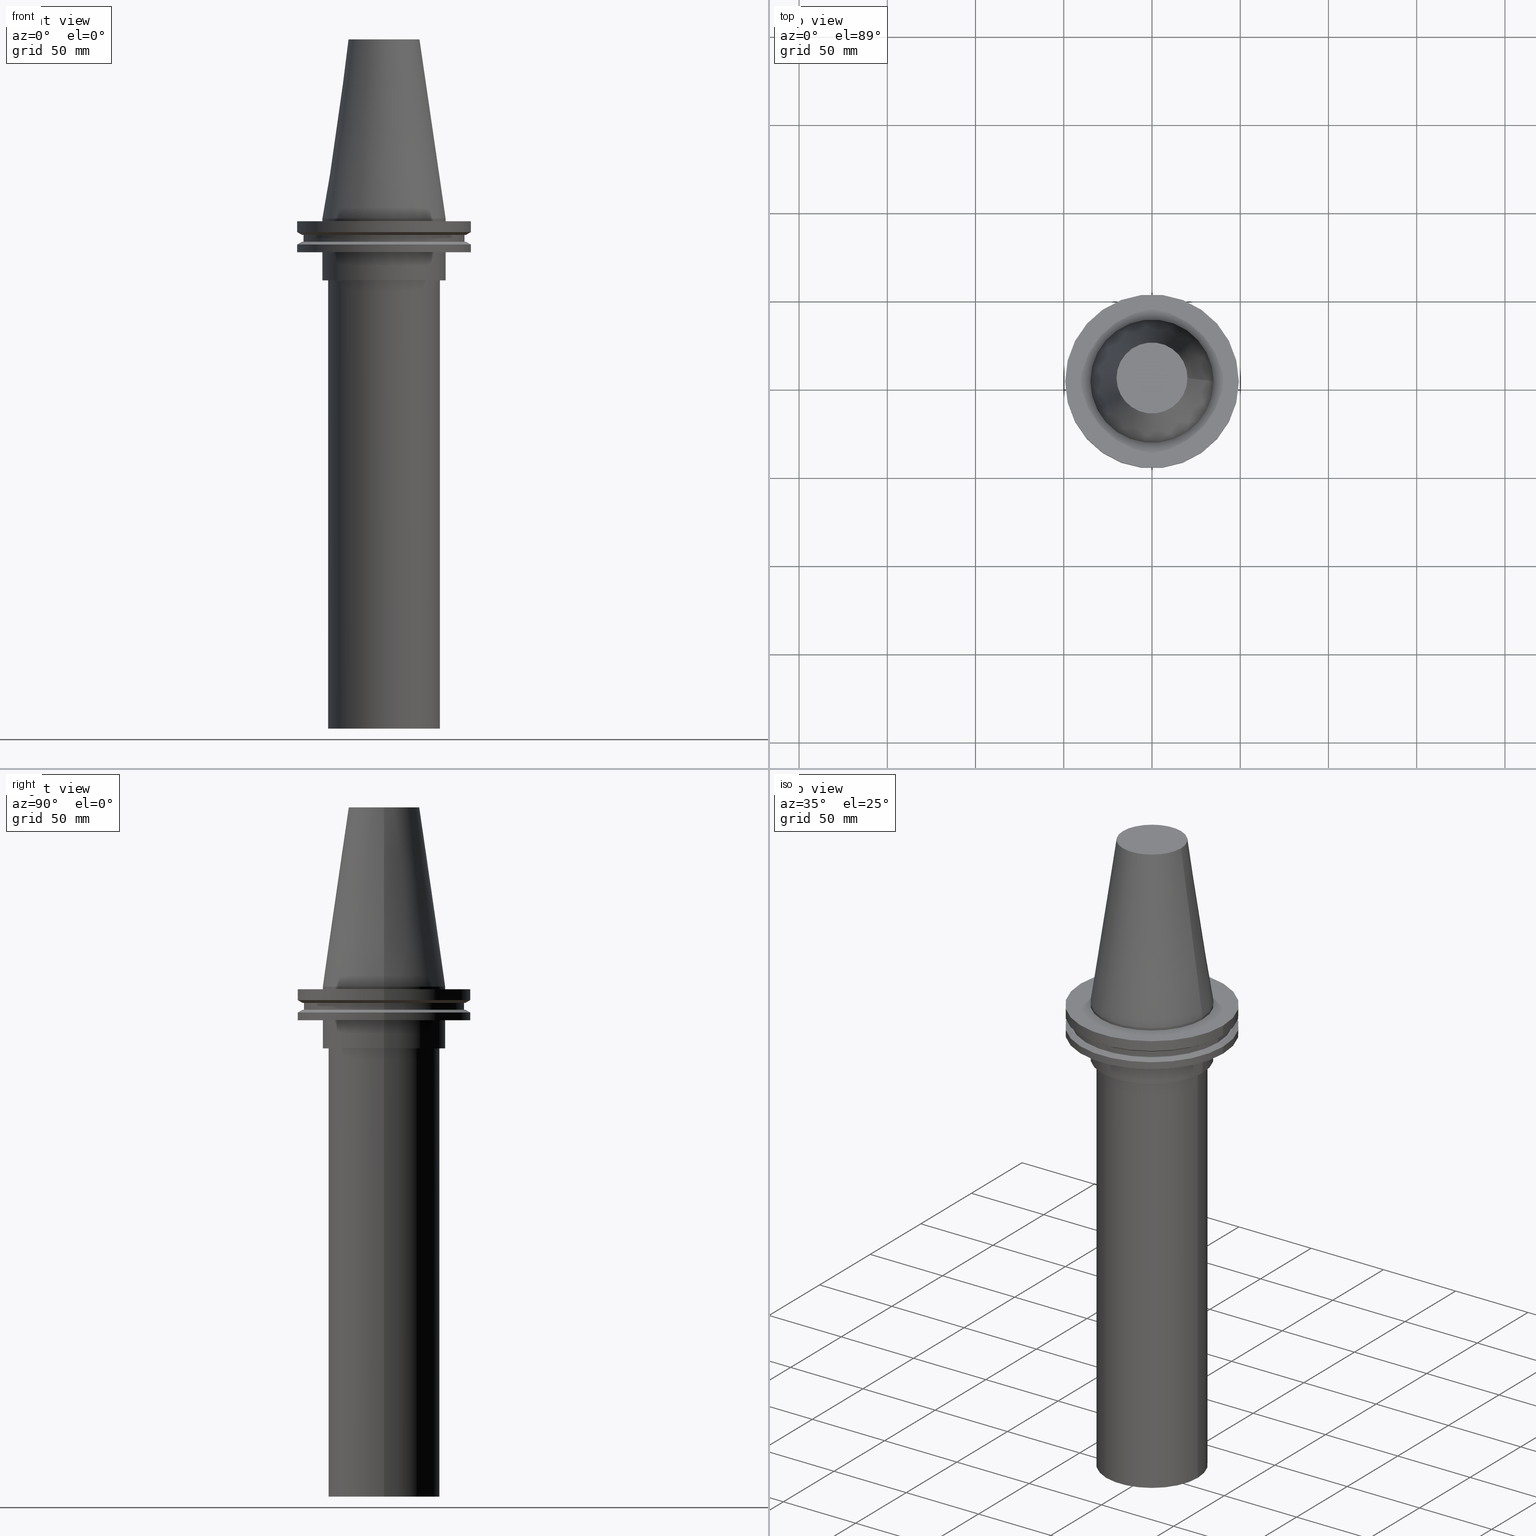
[diagram: canonical four-view strip — front | top / right | iso, engineering-drawing reading convention]
A machine part, canonical four-view strip (front | top / right | iso — engineering-drawing reading convention). The complete STEP part file that produces these views, byte-faithful:
ISO-10303-21;
HEADER;
FILE_DESCRIPTION (( 'STEP AP203' ),
    '1' );
FILE_NAME ('11.326.667.stp',
    '2022-03-09T14:54:25',
    ( '' ),
    ( '' ),
    'SwSTEP 2.0',
    'SolidWorks 2021',
    '' );
FILE_SCHEMA (( 'CONFIG_CONTROL_DESIGN' ));
ENDSEC;

DATA;
#1 = PERSON_AND_ORGANIZATION ( #78, #161 ) ;
#2 = ORIENTED_EDGE ( 'NONE', *, *, #365, .T. ) ;
#3 = EDGE_CURVE ( 'NONE', #98, #98, #148, .T. ) ;
#4 = CARTESIAN_POINT ( 'NONE',  ( 0.000000000000000000, 0.000000000000000000, 101.5999999999999943 ) ) ;
#5 = AXIS2_PLACEMENT_3D ( 'NONE', #248, #250, #370 ) ;
#6 = AXIS2_PLACEMENT_3D ( 'NONE', #90, #182, #334 ) ;
#7 = EDGE_LOOP ( 'NONE', ( #206 ) ) ;
#8 = DIRECTION ( 'NONE',  ( 0.000000000000000000, -0.000000000000000000, 1.000000000000000000 ) ) ;
#9 = EDGE_LOOP ( 'NONE', ( #40 ) ) ;
#10 = CARTESIAN_POINT ( 'NONE',  ( 0.000000000000000000, 0.000000000000000000, 101.5999999999999801 ) ) ;
#11 = EDGE_LOOP ( 'NONE', ( #306 ) ) ;
#12 = CARTESIAN_POINT ( 'NONE',  ( 0.000000000000000000, 49.21499999999998920, -19.04999999999999716 ) ) ;
#13 = DIRECTION ( 'NONE',  ( 1.000000000000000000, 0.000000000000000000, 0.000000000000000000 ) ) ;
#14 = VERTEX_POINT ( 'NONE', #19 ) ;
#15 = CARTESIAN_POINT ( 'NONE',  ( 49.21499999999998920, 0.000000000000000000, -14.65761014474876944 ) ) ;
#16 = EDGE_CURVE ( 'NONE', #378, #378, #138, .T. ) ;
#17 = CC_DESIGN_APPROVAL ( #258, ( #376 ) ) ;
#18 = CIRCLE ( 'NONE', #288, 45.64500000000000313 ) ;
#19 = CARTESIAN_POINT ( 'NONE',  ( 49.21499999999999631, 0.000000000000000000, -1.499999999999987566 ) ) ;
#20 = ADVANCED_FACE ( 'NONE', ( #44, #163 ), #72, .T. ) ;
#21 = CARTESIAN_POINT ( 'NONE',  ( 0.000000000000000000, 0.000000000000000000, 0.000000000000000000 ) ) ;
#22 = APPROVAL_ROLE ( '' ) ;
#23 = CIRCLE ( 'NONE', #348, 34.92499999999999716 ) ;
#24 = CARTESIAN_POINT ( 'NONE',  ( 0.000000000000000000, 45.64500000000000313, -13.05499999999999794 ) ) ;
#25 = EDGE_CURVE ( 'NONE', #320, #320, #141, .T. ) ;
#26 = CARTESIAN_POINT ( 'NONE',  ( 0.000000000000000000, 49.21499999999999631, -1.499999999999992895 ) ) ;
#27 = PRODUCT_DEFINITION_SHAPE ( 'NONE', 'NONE',  #54 ) ;
#28 = DIRECTION ( 'NONE',  ( -1.000000000000000000, 0.000000000000000000, -0.000000000000000000 ) ) ;
#29 = ADVANCED_BREP_SHAPE_REPRESENTATION ( '11.326.667', ( #239, #56 ), #170 ) ;
#30 = FACE_OUTER_BOUND ( 'NONE', #89, .T. ) ;
#31 = PERSON_AND_ORGANIZATION_ROLE ( 'classification_officer' ) ;
#32 = EDGE_LOOP ( 'NONE', ( #35 ) ) ;
#33 = DIRECTION ( 'NONE',  ( 1.000000000000000000, 0.000000000000000000, 0.000000000000000000 ) ) ;
#34 = CALENDAR_DATE ( 2022, 9, 3 ) ;
#35 = ORIENTED_EDGE ( 'NONE', *, *, #279, .F. ) ;
#36 = DIRECTION ( 'NONE',  ( 1.000000000000000000, 0.000000000000000000, 0.000000000000000000 ) ) ;
#37 = AXIS2_PLACEMENT_3D ( 'NONE', #12, #127, #100 ) ;
#38 = EDGE_LOOP ( 'NONE', ( #210 ) ) ;
#39 = DIRECTION ( 'NONE',  ( -0.000000000000000000, -0.000000000000000000, 1.000000000000000000 ) ) ;
#40 = ORIENTED_EDGE ( 'NONE', *, *, #165, .T. ) ;
#41 = FACE_OUTER_BOUND ( 'NONE', #326, .T. ) ;
#42 = ADVANCED_FACE ( 'NONE', ( #30, #268 ), #373, .T. ) ;
#43 = DIRECTION ( 'NONE',  ( -0.000000000000000000, -0.000000000000000000, 1.000000000000000000 ) ) ;
#44 = FACE_OUTER_BOUND ( 'NONE', #38, .T. ) ;
#45 = VERTEX_POINT ( 'NONE', #255 ) ;
#46 = CARTESIAN_POINT ( 'NONE',  ( 34.92499999999999005, 0.000000000000000000, 0.000000000000000000 ) ) ;
#47 = CIRCLE ( 'NONE', #116, 34.92499999999999005 ) ;
#48 = ADVANCED_FACE ( 'NONE', ( #315, #113 ), #176, .T. ) ;
#49 = FACE_BOUND ( 'NONE', #32, .T. ) ;
#50 = CIRCLE ( 'NONE', #6, 49.21499999999999631 ) ;
#51 = FACE_BOUND ( 'NONE', #335, .T. ) ;
#52 = EDGE_CURVE ( 'NONE', #75, #75, #23, .T. ) ;
#53 = DIRECTION ( 'NONE',  ( 1.000000000000000000, 0.000000000000000000, 0.000000000000000000 ) ) ;
#54 = PRODUCT_DEFINITION ( 'UNKNOWN', '', #376, #352 ) ;
#55 = CARTESIAN_POINT ( 'NONE',  ( 0.000000000000000000, 0.000000000000000000, -35.00000000000000000 ) ) ;
#56 = AXIS2_PLACEMENT_3D ( 'NONE', #196, #345, #287 ) ;
#57 = CARTESIAN_POINT ( 'NONE',  ( 0.000000000000000000, 0.000000000000000000, -9.204999999999991189 ) ) ;
#58 = CLOSED_SHELL ( 'NONE', ( #96, #230, #95, #20, #314, #343, #109, #66, #203, #139, #42, #48, #81, #316, #260, #347 ) ) ;
#59 = EDGE_LOOP ( 'NONE', ( #99 ) ) ;
#60 = FACE_OUTER_BOUND ( 'NONE', #11, .T. ) ;
#61 = ORIENTED_EDGE ( 'NONE', *, *, #25, .T. ) ;
#62 = DIRECTION ( 'NONE',  ( -0.000000000000000000, -0.000000000000000000, 1.000000000000000000 ) ) ;
#63 = ORIENTED_EDGE ( 'NONE', *, *, #277, .T. ) ;
#64 = DIRECTION ( 'NONE',  ( -0.000000000000000000, -0.000000000000000000, 1.000000000000000000 ) ) ;
#65 = AXIS2_PLACEMENT_3D ( 'NONE', #245, #43, #269 ) ;
#66 = ADVANCED_FACE ( 'NONE', ( #385, #387 ), #292, .F. ) ;
#67 = ORIENTED_EDGE ( 'NONE', *, *, #16, .F. ) ;
#68 = CARTESIAN_POINT ( 'NONE',  ( 31.63500000000000512, 0.000000000000000000, -288.9999999999999432 ) ) ;
#69 = ORIENTED_EDGE ( 'NONE', *, *, #365, .F. ) ;
#70 = APPROVAL ( #272, 'UNSPECIFIED' ) ;
#71 = DIRECTION ( 'NONE',  ( -0.000000000000000000, -0.000000000000000000, 1.000000000000000000 ) ) ;
#72 = CYLINDRICAL_SURFACE ( 'NONE', #235, 34.92499999999999716 ) ;
#73 = PERSON_AND_ORGANIZATION ( #78, #161 ) ;
#74 = APPROVAL_PERSON_ORGANIZATION ( #291, #319, #22 ) ;
#75 = VERTEX_POINT ( 'NONE', #195 ) ;
#76 = SECURITY_CLASSIFICATION ( '', '', #366 ) ;
#77 = AXIS2_PLACEMENT_3D ( 'NONE', #197, #143, #296 ) ;
#78 = PERSON ( 'UNSPECIFIED', 'UNSPECIFIED', 'UNSPECIFIED', ('UNSPECIFIED'), ('UNSPECIFIED'), ('UNSPECIFIED') ) ;
#79 = PLANE ( 'NONE',  #223 ) ;
#80 = CARTESIAN_POINT ( 'NONE',  ( 0.000000000000000000, 0.000000000000000000, 101.5999999999999943 ) ) ;
#81 = ADVANCED_FACE ( 'NONE', ( #350, #112 ), #266, .F. ) ;
#82 = APPROVAL_DATE_TIME ( #114, #319 ) ;
#83 = AXIS2_PLACEMENT_3D ( 'NONE', #349, #207, #211 ) ;
#84 = AXIS2_PLACEMENT_3D ( 'NONE', #395, #372, #157 ) ;
#85 = CARTESIAN_POINT ( 'NONE',  ( 0.000000000000000000, 0.000000000000000000, -14.65761014474876944 ) ) ;
#86 = CIRCLE ( 'NONE', #338, 49.21499999999998920 ) ;
#87 = CARTESIAN_POINT ( 'NONE',  ( 0.000000000000000000, 0.000000000000000000, -14.65761014474876944 ) ) ;
#88 = FACE_OUTER_BOUND ( 'NONE', #7, .T. ) ;
#89 = EDGE_LOOP ( 'NONE', ( #300 ) ) ;
#90 = CARTESIAN_POINT ( 'NONE',  ( 0.000000000000000000, 0.000000000000000000, -1.499999999999987566 ) ) ;
#91 = ORIENTED_EDGE ( 'NONE', *, *, #232, .F. ) ;
#92 = CARTESIAN_POINT ( 'NONE',  ( 0.000000000000000000, 31.63500000000000512, -289.0000000000000568 ) ) ;
#93 = EDGE_LOOP ( 'NONE', ( #124 ) ) ;
#94 = CARTESIAN_POINT ( 'NONE',  ( 0.000000000000000000, 20.10819343178871321, 101.5999999999999943 ) ) ;
#95 = ADVANCED_FACE ( 'NONE', ( #393, #115 ), #79, .F. ) ;
#96 = ADVANCED_FACE ( 'NONE', ( #49, #391 ), #155, .T. ) ;
#97 = EDGE_LOOP ( 'NONE', ( #2 ) ) ;
#98 = VERTEX_POINT ( 'NONE', #68 ) ;
#99 = ORIENTED_EDGE ( 'NONE', *, *, #52, .T. ) ;
#100 = DIRECTION ( 'NONE',  ( 1.000000000000000000, 0.000000000000000000, 0.000000000000000000 ) ) ;
#101 = DIRECTION ( 'NONE',  ( -0.000000000000000000, -0.000000000000000000, 1.000000000000000000 ) ) ;
#102 = PERSON_AND_ORGANIZATION ( #78, #161 ) ;
#103 = VERTEX_POINT ( 'NONE', #386 ) ;
#104 = CC_DESIGN_APPROVAL ( #319, ( #54 ) ) ;
#105 = CIRCLE ( 'NONE', #377, 20.10819343178871321 ) ;
#106 = VERTEX_POINT ( 'NONE', #15 ) ;
#107 = CIRCLE ( 'NONE', #354, 31.63500000000000512 ) ;
#108 = CARTESIAN_POINT ( 'NONE',  ( 31.63500000000000512, 0.000000000000000000, -35.00000000000000000 ) ) ;
#109 = ADVANCED_FACE ( 'NONE', ( #289, #199 ), #275, .T. ) ;
#110 = CC_DESIGN_APPROVAL ( #70, ( #76 ) ) ;
#111 = AXIS2_PLACEMENT_3D ( 'NONE', #94, #327, #129 ) ;
#112 = FACE_OUTER_BOUND ( 'NONE', #280, .T. ) ;
#113 = FACE_OUTER_BOUND ( 'NONE', #369, .T. ) ;
#114 = DATE_AND_TIME ( #262, #241 ) ;
#115 = FACE_OUTER_BOUND ( 'NONE', #185, .T. ) ;
#116 = AXIS2_PLACEMENT_3D ( 'NONE', #214, #188, #332 ) ;
#117 = DATE_AND_TIME ( #295, #267 ) ;
#118 = CARTESIAN_POINT ( 'NONE',  ( 0.000000000000000000, 46.43919780457007818, -9.204999999999998295 ) ) ;
#119 = DIRECTION ( 'NONE',  ( -0.000000000000000000, -0.000000000000000000, 1.000000000000000000 ) ) ;
#120 = APPROVAL_ROLE ( '' ) ;
#121 = ORIENTED_EDGE ( 'NONE', *, *, #277, .F. ) ;
#122 = CYLINDRICAL_SURFACE ( 'NONE', #220, 34.92499999999999005 ) ;
#123 = APPROVAL_DATE_TIME ( #356, #70 ) ;
#124 = ORIENTED_EDGE ( 'NONE', *, *, #298, .F. ) ;
#125 = DATE_TIME_ROLE ( 'creation_date' ) ;
#126 = ORIENTED_EDGE ( 'NONE', *, *, #263, .F. ) ;
#127 = DIRECTION ( 'NONE',  ( 0.000000000000000000, -0.000000000000000000, 1.000000000000000000 ) ) ;
#128 = EDGE_LOOP ( 'NONE', ( #181 ) ) ;
#129 = DIRECTION ( 'NONE',  ( -1.000000000000000000, 0.000000000000000000, -0.000000000000000000 ) ) ;
#130 = CC_DESIGN_PERSON_AND_ORGANIZATION_ASSIGNMENT ( #1, #31, ( #76 ) ) ;
#131 = EDGE_LOOP ( 'NONE', ( #191 ) ) ;
#132 = PLANE ( 'NONE',  #111 ) ;
#133 = DIRECTION ( 'NONE',  ( 1.000000000000000000, 0.000000000000000000, 0.000000000000000000 ) ) ;
#134 = VERTEX_POINT ( 'NONE', #219 ) ;
#135 = CARTESIAN_POINT ( 'NONE',  ( 49.21500000000000341, 0.000000000000000000, -7.602389855251287187 ) ) ;
#136 = APPLICATION_PROTOCOL_DEFINITION ( 'international standard', 'config_control_design', 1994, #381 ) ;
#137 = CARTESIAN_POINT ( 'NONE',  ( 34.92499999999999005, 0.000000000000000000, -1.499999999999987566 ) ) ;
#138 = CIRCLE ( 'NONE', #285, 49.21499999999998920 ) ;
#139 = ADVANCED_FACE ( 'NONE', ( #140, #51 ), #201, .F. ) ;
#140 = FACE_OUTER_BOUND ( 'NONE', #333, .T. ) ;
#141 = CIRCLE ( 'NONE', #392, 45.64500000000000313 ) ;
#142 =( NAMED_UNIT ( * ) SI_UNIT ( $, .STERADIAN. ) SOLID_ANGLE_UNIT ( ) );
#143 = DIRECTION ( 'NONE',  ( -0.000000000000000000, -0.000000000000000000, 1.000000000000000000 ) ) ;
#144 = PERSON_AND_ORGANIZATION_ROLE ( 'creator' ) ;
#145 = CARTESIAN_POINT ( 'NONE',  ( 0.000000000000000000, 34.92499999999999716, -35.00000000000000000 ) ) ;
#146 = PERSON_AND_ORGANIZATION ( #78, #161 ) ;
#147 = DIRECTION ( 'NONE',  ( 1.000000000000000000, 0.000000000000000000, 0.000000000000000000 ) ) ;
#148 = CIRCLE ( 'NONE', #337, 31.63500000000000512 ) ;
#149 = DIRECTION ( 'NONE',  ( 0.000000000000000000, -0.000000000000000000, 1.000000000000000000 ) ) ;
#150 = EDGE_LOOP ( 'NONE', ( #126 ) ) ;
#151 = FACE_OUTER_BOUND ( 'NONE', #208, .T. ) ;
#152 = PERSON_AND_ORGANIZATION ( #78, #161 ) ;
#153 = ORIENTED_EDGE ( 'NONE', *, *, #263, .T. ) ;
#154 = FACE_BOUND ( 'NONE', #59, .T. ) ;
#155 = CONICAL_SURFACE ( 'NONE', #202, 34.92499999999999005, 0.1448138465474119452 ) ;
#156 = ORIENTED_EDGE ( 'NONE', *, *, #379, .T. ) ;
#157 = DIRECTION ( 'NONE',  ( 1.000000000000000000, 0.000000000000000000, 0.000000000000000000 ) ) ;
#158 = ORIENTED_EDGE ( 'NONE', *, *, #183, .T. ) ;
#159 = CARTESIAN_POINT ( 'NONE',  ( 0.000000000000000000, 0.000000000000000000, -13.05499999999999794 ) ) ;
#160 = VERTEX_POINT ( 'NONE', #108 ) ;
#161 = ORGANIZATION ( 'UNSPECIFIED', 'UNSPECIFIED', '' ) ;
#162 = CIRCLE ( 'NONE', #382, 46.43919780457007818 ) ;
#163 = FACE_OUTER_BOUND ( 'NONE', #131, .T. ) ;
#164 = CARTESIAN_POINT ( 'NONE',  ( 49.21499999999998920, 0.000000000000000000, -19.04999999999999716 ) ) ;
#165 = EDGE_CURVE ( 'NONE', #160, #160, #107, .T. ) ;
#166 = VERTEX_POINT ( 'NONE', #46 ) ;
#167 = CIRCLE ( 'NONE', #5, 34.92499999999999005 ) ;
#168 = CC_DESIGN_DATE_AND_TIME_ASSIGNMENT ( #117, #125, ( #54 ) ) ;
#169 = DIRECTION ( 'NONE',  ( 0.000000000000000000, 0.000000000000000000, -1.000000000000000000 ) ) ;
#170 =( GEOMETRIC_REPRESENTATION_CONTEXT ( 3 ) GLOBAL_UNCERTAINTY_ASSIGNED_CONTEXT ( ( #384 ) ) GLOBAL_UNIT_ASSIGNED_CONTEXT ( ( #225, #346, #142 ) ) REPRESENTATION_CONTEXT ( 'NONE', 'WORKASPACE' ) );
#171 = CC_DESIGN_PERSON_AND_ORGANIZATION_ASSIGNMENT ( #178, #144, ( #376 ) ) ;
#172 = APPLICATION_PROTOCOL_DEFINITION ( 'international standard', 'config_control_design', 1994, #329 ) ;
#173 = CARTESIAN_POINT ( 'NONE',  ( 0.000000000000000000, 0.000000000000000000, -19.04999999999999716 ) ) ;
#174 = AXIS2_PLACEMENT_3D ( 'NONE', #118, #149, #358 ) ;
#175 = PERSON_AND_ORGANIZATION ( #78, #161 ) ;
#176 = CYLINDRICAL_SURFACE ( 'NONE', #328, 49.21499999999999631 ) ;
#177 = CARTESIAN_POINT ( 'NONE',  ( 0.000000000000000000, 0.000000000000000000, 101.5999999999999943 ) ) ;
#178 = PERSON_AND_ORGANIZATION ( #78, #161 ) ;
#179 = DIRECTION ( 'NONE',  ( 0.000000000000000000, -0.000000000000000000, 1.000000000000000000 ) ) ;
#180 = AXIS2_PLACEMENT_3D ( 'NONE', #26, #353, #28 ) ;
#181 = ORIENTED_EDGE ( 'NONE', *, *, #256, .T. ) ;
#182 = DIRECTION ( 'NONE',  ( -0.000000000000000000, -0.000000000000000000, 1.000000000000000000 ) ) ;
#183 = EDGE_CURVE ( 'NONE', #106, #106, #86, .T. ) ;
#184 = PERSON_AND_ORGANIZATION_ROLE ( 'design_supplier' ) ;
#185 = EDGE_LOOP ( 'NONE', ( #91 ) ) ;
#186 = DIRECTION ( 'NONE',  ( 1.000000000000000000, 0.000000000000000000, 0.000000000000000000 ) ) ;
#187 = EDGE_LOOP ( 'NONE', ( #153 ) ) ;
#188 = DIRECTION ( 'NONE',  ( -0.000000000000000000, -0.000000000000000000, 1.000000000000000000 ) ) ;
#189 = ORIENTED_EDGE ( 'NONE', *, *, #298, .T. ) ;
#190 = CARTESIAN_POINT ( 'NONE',  ( 0.000000000000000000, 0.000000000000000000, -9.204999999999991189 ) ) ;
#191 = ORIENTED_EDGE ( 'NONE', *, *, #232, .T. ) ;
#192 = DIRECTION ( 'NONE',  ( 1.000000000000000000, 0.000000000000000000, 0.000000000000000000 ) ) ;
#193 = CARTESIAN_POINT ( 'NONE',  ( 0.000000000000000000, 0.000000000000000000, 101.5999999999999943 ) ) ;
#194 = AXIS2_PLACEMENT_3D ( 'NONE', #24, #294, #297 ) ;
#195 = CARTESIAN_POINT ( 'NONE',  ( 34.92499999999999716, 0.000000000000000000, -19.04999999999999716 ) ) ;
#196 = CARTESIAN_POINT ( 'NONE',  ( 0.000000000000000000, 0.000000000000000000, 0.000000000000000000 ) ) ;
#197 = CARTESIAN_POINT ( 'NONE',  ( 0.000000000000000000, 0.000000000000000000, -9.204999999999991189 ) ) ;
#198 = VERTEX_POINT ( 'NONE', #228 ) ;
#199 = FACE_OUTER_BOUND ( 'NONE', #247, .T. ) ;
#200 = CIRCLE ( 'NONE', #84, 46.43919780457007818 ) ;
#201 = PLANE ( 'NONE',  #174 ) ;
#202 = AXIS2_PLACEMENT_3D ( 'NONE', #21, #169, #264 ) ;
#203 = ADVANCED_FACE ( 'NONE', ( #88, #323 ), #383, .T. ) ;
#204 = DIRECTION ( 'NONE',  ( -0.000000000000000000, -0.000000000000000000, 1.000000000000000000 ) ) ;
#205 = DIRECTION ( 'NONE',  ( -0.000000000000000000, -0.000000000000000000, 1.000000000000000000 ) ) ;
#206 = ORIENTED_EDGE ( 'NONE', *, *, #25, .F. ) ;
#207 = DIRECTION ( 'NONE',  ( -0.000000000000000000, -0.000000000000000000, 1.000000000000000000 ) ) ;
#208 = EDGE_LOOP ( 'NONE', ( #371 ) ) ;
#209 = DIRECTION ( 'NONE',  ( 1.000000000000000000, 0.000000000000000000, 0.000000000000000000 ) ) ;
#210 = ORIENTED_EDGE ( 'NONE', *, *, #52, .F. ) ;
#211 = DIRECTION ( 'NONE',  ( 1.000000000000000000, 0.000000000000000000, 0.000000000000000000 ) ) ;
#212 = APPROVAL_PERSON_ORGANIZATION ( #152, #70, #302 ) ;
#213 = ORIENTED_EDGE ( 'NONE', *, *, #256, .F. ) ;
#214 = CARTESIAN_POINT ( 'NONE',  ( 0.000000000000000000, 0.000000000000000000, -1.499999999999987566 ) ) ;
#215 = EDGE_LOOP ( 'NONE', ( #156 ) ) ;
#216 = CARTESIAN_POINT ( 'NONE',  ( 0.000000000000000000, 0.000000000000000000, 101.5999999999999943 ) ) ;
#217 = DIRECTION ( 'NONE',  ( -0.000000000000000000, -0.000000000000000000, 1.000000000000000000 ) ) ;
#218 = APPROVAL_STATUS ( 'not_yet_approved' ) ;
#219 = CARTESIAN_POINT ( 'NONE',  ( 20.10819343178871321, 0.000000000000000000, 101.5999999999999801 ) ) ;
#220 = AXIS2_PLACEMENT_3D ( 'NONE', #216, #252, #192 ) ;
#221 = EDGE_CURVE ( 'NONE', #284, #284, #243, .T. ) ;
#222 = AXIS2_PLACEMENT_3D ( 'NONE', #85, #355, #229 ) ;
#223 = AXIS2_PLACEMENT_3D ( 'NONE', #145, #179, #237 ) ;
#224 = DIRECTION ( 'NONE',  ( 1.000000000000000000, 0.000000000000000000, 0.000000000000000000 ) ) ;
#225 =( LENGTH_UNIT ( ) NAMED_UNIT ( * ) SI_UNIT ( .MILLI., .METRE. ) );
#226 = CC_DESIGN_PERSON_AND_ORGANIZATION_ASSIGNMENT ( #146, #184, ( #376 ) ) ;
#227 = DIRECTION ( 'NONE',  ( 1.000000000000000000, 0.000000000000000000, 0.000000000000000000 ) ) ;
#228 = CARTESIAN_POINT ( 'NONE',  ( 46.43919780457007818, 0.000000000000000000, -13.05499999999999794 ) ) ;
#229 = DIRECTION ( 'NONE',  ( -1.000000000000000000, 0.000000000000000000, 0.000000000000000000 ) ) ;
#230 = ADVANCED_FACE ( 'NONE', ( #278 ), #132, .F. ) ;
#231 = CC_DESIGN_SECURITY_CLASSIFICATION ( #76, ( #376 ) ) ;
#232 = EDGE_CURVE ( 'NONE', #313, #313, #305, .T. ) ;
#233 = COORDINATED_UNIVERSAL_TIME_OFFSET ( 6, 0, .BEHIND. ) ;
#234 = DIRECTION ( 'NONE',  ( -0.000000000000000000, -0.000000000000000000, 1.000000000000000000 ) ) ;
#235 = AXIS2_PLACEMENT_3D ( 'NONE', #193, #311, #13 ) ;
#236 = CC_DESIGN_PERSON_AND_ORGANIZATION_ASSIGNMENT ( #73, #312, ( #54 ) ) ;
#237 = DIRECTION ( 'NONE',  ( 1.000000000000000000, 0.000000000000000000, 0.000000000000000000 ) ) ;
#238 = CALENDAR_DATE ( 2022, 9, 3 ) ;
#239 = MANIFOLD_SOLID_BREP ( 'CKB', #58 ) ;
#240 = FACE_OUTER_BOUND ( 'NONE', #367, .T. ) ;
#241 = LOCAL_TIME ( 8, 54, 25.00000000000000000, #342 ) ;
#242 = LOCAL_TIME ( 8, 54, 25.00000000000000000, #389 ) ;
#243 = CIRCLE ( 'NONE', #83, 49.21500000000000341 ) ;
#244 = EDGE_LOOP ( 'NONE', ( #121 ) ) ;
#245 = CARTESIAN_POINT ( 'NONE',  ( 0.000000000000000000, 0.000000000000000000, 0.000000000000000000 ) ) ;
#246 = APPROVAL_STATUS ( 'not_yet_approved' ) ;
#247 = EDGE_LOOP ( 'NONE', ( #158 ) ) ;
#248 = CARTESIAN_POINT ( 'NONE',  ( 0.000000000000000000, 0.000000000000000000, 0.000000000000000000 ) ) ;
#249 = EDGE_LOOP ( 'NONE', ( #69 ) ) ;
#250 = DIRECTION ( 'NONE',  ( -0.000000000000000000, -0.000000000000000000, 1.000000000000000000 ) ) ;
#251 = EDGE_LOOP ( 'NONE', ( #67 ) ) ;
#252 = DIRECTION ( 'NONE',  ( -0.000000000000000000, -0.000000000000000000, 1.000000000000000000 ) ) ;
#253 = CARTESIAN_POINT ( 'NONE',  ( 0.000000000000000000, 0.000000000000000000, -288.9999999999999432 ) ) ;
#254 = VERTEX_POINT ( 'NONE', #137 ) ;
#255 = CARTESIAN_POINT ( 'NONE',  ( 46.43919780457007818, 0.000000000000000000, -9.204999999999991189 ) ) ;
#256 = EDGE_CURVE ( 'NONE', #45, #45, #162, .T. ) ;
#257 = MECHANICAL_CONTEXT ( 'NONE', #381, 'mechanical' ) ;
#258 = APPROVAL ( #246, 'UNSPECIFIED' ) ;
#259 = AXIS2_PLACEMENT_3D ( 'NONE', #92, #8, #209 ) ;
#260 = ADVANCED_FACE ( 'NONE', ( #304, #41 ), #368, .T. ) ;
#261 = DIRECTION ( 'NONE',  ( 1.000000000000000000, 0.000000000000000000, 0.000000000000000000 ) ) ;
#262 = CALENDAR_DATE ( 2022, 9, 3 ) ;
#263 = EDGE_CURVE ( 'NONE', #103, #103, #18, .T. ) ;
#264 = DIRECTION ( 'NONE',  ( -1.000000000000000000, 0.000000000000000000, 0.000000000000000000 ) ) ;
#265 = COORDINATED_UNIVERSAL_TIME_OFFSET ( 6, 0, .BEHIND. ) ;
#266 = PLANE ( 'NONE',  #180 ) ;
#267 = LOCAL_TIME ( 8, 54, 25.00000000000000000, #299 ) ;
#268 = FACE_BOUND ( 'NONE', #128, .T. ) ;
#269 = DIRECTION ( 'NONE',  ( 1.000000000000000000, 0.000000000000000000, 0.000000000000000000 ) ) ;
#270 = CC_DESIGN_DATE_AND_TIME_ASSIGNMENT ( #359, #330, ( #76 ) ) ;
#271 = ORIENTED_EDGE ( 'NONE', *, *, #221, .T. ) ;
#272 = APPROVAL_STATUS ( 'not_yet_approved' ) ;
#273 = ORIENTED_EDGE ( 'NONE', *, *, #3, .F. ) ;
#274 = PLANE ( 'NONE',  #37 ) ;
#275 = CONICAL_SURFACE ( 'NONE', #222, 49.21499999999998920, 1.047197551196554333 ) ;
#276 = ORIENTED_EDGE ( 'NONE', *, *, #3, .T. ) ;
#277 = EDGE_CURVE ( 'NONE', #14, #14, #50, .T. ) ;
#278 = FACE_OUTER_BOUND ( 'NONE', #339, .T. ) ;
#279 = EDGE_CURVE ( 'NONE', #134, #134, #105, .T. ) ;
#280 = EDGE_LOOP ( 'NONE', ( #63 ) ) ;
#281 = FACE_OUTER_BOUND ( 'NONE', #251, .T. ) ;
#282 = LOCAL_TIME ( 8, 54, 25.00000000000000000, #233 ) ;
#283 = EDGE_LOOP ( 'NONE', ( #303 ) ) ;
#284 = VERTEX_POINT ( 'NONE', #135 ) ;
#285 = AXIS2_PLACEMENT_3D ( 'NONE', #374, #101, #133 ) ;
#286 = CARTESIAN_POINT ( 'NONE',  ( 45.64500000000000313, 0.000000000000000000, -9.204999999999991189 ) ) ;
#287 = DIRECTION ( 'NONE',  ( 1.000000000000000000, 0.000000000000000000, 0.000000000000000000 ) ) ;
#288 = AXIS2_PLACEMENT_3D ( 'NONE', #159, #71, #33 ) ;
#289 = FACE_BOUND ( 'NONE', #93, .T. ) ;
#290 = AXIS2_PLACEMENT_3D ( 'NONE', #177, #205, #147 ) ;
#291 = PERSON_AND_ORGANIZATION ( #78, #161 ) ;
#292 = PLANE ( 'NONE',  #194 ) ;
#293 = SHAPE_DEFINITION_REPRESENTATION ( #27, #29 ) ;
#294 = DIRECTION ( 'NONE',  ( 0.000000000000000000, 0.000000000000000000, -1.000000000000000000 ) ) ;
#295 = CALENDAR_DATE ( 2022, 9, 3 ) ;
#296 = DIRECTION ( 'NONE',  ( 1.000000000000000000, 0.000000000000000000, 0.000000000000000000 ) ) ;
#297 = DIRECTION ( 'NONE',  ( -1.000000000000000000, 0.000000000000000000, -0.000000000000000000 ) ) ;
#298 = EDGE_CURVE ( 'NONE', #198, #198, #200, .T. ) ;
#299 = COORDINATED_UNIVERSAL_TIME_OFFSET ( 6, 0, .BEHIND. ) ;
#300 = ORIENTED_EDGE ( 'NONE', *, *, #221, .F. ) ;
#301 = CYLINDRICAL_SURFACE ( 'NONE', #318, 49.21499999999998920 ) ;
#302 = APPROVAL_ROLE ( '' ) ;
#303 = ORIENTED_EDGE ( 'NONE', *, *, #165, .F. ) ;
#304 = FACE_OUTER_BOUND ( 'NONE', #283, .T. ) ;
#305 = CIRCLE ( 'NONE', #325, 34.92499999999999716 ) ;
#306 = ORIENTED_EDGE ( 'NONE', *, *, #183, .F. ) ;
#307 = FACE_OUTER_BOUND ( 'NONE', #97, .T. ) ;
#308 = ORIENTED_EDGE ( 'NONE', *, *, #279, .T. ) ;
#309 = DIRECTION ( 'NONE',  ( -0.000000000000000000, -0.000000000000000000, 1.000000000000000000 ) ) ;
#310 = DIRECTION ( 'NONE',  ( 1.000000000000000000, 0.000000000000000000, 0.000000000000000000 ) ) ;
#311 = DIRECTION ( 'NONE',  ( -0.000000000000000000, -0.000000000000000000, 1.000000000000000000 ) ) ;
#312 = PERSON_AND_ORGANIZATION_ROLE ( 'creator' ) ;
#313 = VERTEX_POINT ( 'NONE', #375 ) ;
#314 = ADVANCED_FACE ( 'NONE', ( #281, #154 ), #274, .F. ) ;
#315 = FACE_OUTER_BOUND ( 'NONE', #244, .T. ) ;
#316 = ADVANCED_FACE ( 'NONE', ( #336, #307 ), #122, .T. ) ;
#317 = DIRECTION ( 'NONE',  ( -0.000000000000000000, -0.000000000000000000, 1.000000000000000000 ) ) ;
#318 = AXIS2_PLACEMENT_3D ( 'NONE', #4, #64, #310 ) ;
#319 = APPROVAL ( #218, 'UNSPECIFIED' ) ;
#320 = VERTEX_POINT ( 'NONE', #286 ) ;
#321 = DIRECTION ( 'NONE',  ( -0.000000000000000000, -0.000000000000000000, 1.000000000000000000 ) ) ;
#322 = DATE_AND_TIME ( #34, #390 ) ;
#323 = FACE_OUTER_BOUND ( 'NONE', #187, .T. ) ;
#324 = DIRECTION ( 'NONE',  ( 1.000000000000000000, 0.000000000000000000, 0.000000000000000000 ) ) ;
#325 = AXIS2_PLACEMENT_3D ( 'NONE', #361, #39, #340 ) ;
#326 = EDGE_LOOP ( 'NONE', ( #276 ) ) ;
#327 = DIRECTION ( 'NONE',  ( 0.000000000000000000, 0.000000000000000000, -1.000000000000000000 ) ) ;
#328 = AXIS2_PLACEMENT_3D ( 'NONE', #80, #234, #227 ) ;
#329 = APPLICATION_CONTEXT ( 'configuration controlled 3d designs of mechanical parts and assemblies' ) ;
#330 = DATE_TIME_ROLE ( 'classification_date' ) ;
#331 = EDGE_LOOP ( 'NONE', ( #363 ) ) ;
#332 = DIRECTION ( 'NONE',  ( 1.000000000000000000, 0.000000000000000000, 0.000000000000000000 ) ) ;
#333 = EDGE_LOOP ( 'NONE', ( #213 ) ) ;
#334 = DIRECTION ( 'NONE',  ( 1.000000000000000000, 0.000000000000000000, 0.000000000000000000 ) ) ;
#335 = EDGE_LOOP ( 'NONE', ( #61 ) ) ;
#336 = FACE_OUTER_BOUND ( 'NONE', #331, .T. ) ;
#337 = AXIS2_PLACEMENT_3D ( 'NONE', #253, #217, #341 ) ;
#338 = AXIS2_PLACEMENT_3D ( 'NONE', #87, #204, #224 ) ;
#339 = EDGE_LOOP ( 'NONE', ( #308 ) ) ;
#340 = DIRECTION ( 'NONE',  ( 1.000000000000000000, 0.000000000000000000, 0.000000000000000000 ) ) ;
#341 = DIRECTION ( 'NONE',  ( 1.000000000000000000, 0.000000000000000000, 0.000000000000000000 ) ) ;
#342 = COORDINATED_UNIVERSAL_TIME_OFFSET ( 6, 0, .BEHIND. ) ;
#343 = ADVANCED_FACE ( 'NONE', ( #60, #151 ), #301, .T. ) ;
#344 = APPROVAL_PERSON_ORGANIZATION ( #175, #258, #120 ) ;
#345 = DIRECTION ( 'NONE',  ( 0.000000000000000000, 0.000000000000000000, 1.000000000000000000 ) ) ;
#346 =( NAMED_UNIT ( * ) PLANE_ANGLE_UNIT ( ) SI_UNIT ( $, .RADIAN. ) );
#347 = ADVANCED_FACE ( 'NONE', ( #240 ), #364, .F. ) ;
#348 = AXIS2_PLACEMENT_3D ( 'NONE', #173, #317, #324 ) ;
#349 = CARTESIAN_POINT ( 'NONE',  ( 0.000000000000000000, 0.000000000000000000, -7.602389855251287187 ) ) ;
#350 = FACE_BOUND ( 'NONE', #249, .T. ) ;
#351 = PRODUCT_RELATED_PRODUCT_CATEGORY ( 'detail', '', ( #388 ) ) ;
#352 = DESIGN_CONTEXT ( 'detailed design', #329, 'design' ) ;
#353 = DIRECTION ( 'NONE',  ( 0.000000000000000000, 0.000000000000000000, -1.000000000000000000 ) ) ;
#354 = AXIS2_PLACEMENT_3D ( 'NONE', #55, #321, #53 ) ;
#355 = DIRECTION ( 'NONE',  ( 0.000000000000000000, 0.000000000000000000, -1.000000000000000000 ) ) ;
#356 = DATE_AND_TIME ( #362, #282 ) ;
#357 = CC_DESIGN_PERSON_AND_ORGANIZATION_ASSIGNMENT ( #102, #380, ( #388 ) ) ;
#358 = DIRECTION ( 'NONE',  ( 1.000000000000000000, 0.000000000000000000, 0.000000000000000000 ) ) ;
#359 = DATE_AND_TIME ( #238, #242 ) ;
#360 = EDGE_LOOP ( 'NONE', ( #189 ) ) ;
#361 = CARTESIAN_POINT ( 'NONE',  ( 0.000000000000000000, 0.000000000000000000, -35.00000000000000000 ) ) ;
#362 = CALENDAR_DATE ( 2022, 9, 3 ) ;
#363 = ORIENTED_EDGE ( 'NONE', *, *, #379, .F. ) ;
#364 = PLANE ( 'NONE',  #259 ) ;
#365 = EDGE_CURVE ( 'NONE', #254, #254, #47, .T. ) ;
#366 = SECURITY_CLASSIFICATION_LEVEL ( 'unclassified' ) ;
#367 = EDGE_LOOP ( 'NONE', ( #273 ) ) ;
#368 = CYLINDRICAL_SURFACE ( 'NONE', #65, 31.63500000000000512 ) ;
#369 = EDGE_LOOP ( 'NONE', ( #271 ) ) ;
#370 = DIRECTION ( 'NONE',  ( 1.000000000000000000, 0.000000000000000000, 0.000000000000000000 ) ) ;
#371 = ORIENTED_EDGE ( 'NONE', *, *, #16, .T. ) ;
#372 = DIRECTION ( 'NONE',  ( -0.000000000000000000, -0.000000000000000000, 1.000000000000000000 ) ) ;
#373 = CONICAL_SURFACE ( 'NONE', #77, 46.43919780457007818, 1.047197551196575205 ) ;
#374 = CARTESIAN_POINT ( 'NONE',  ( 0.000000000000000000, 0.000000000000000000, -19.04999999999999716 ) ) ;
#375 = CARTESIAN_POINT ( 'NONE',  ( 34.92499999999999716, 0.000000000000000000, -35.00000000000000000 ) ) ;
#376 = PRODUCT_DEFINITION_FORMATION_WITH_SPECIFIED_SOURCE ( 'ANY', '', #388, .NOT_KNOWN. ) ;
#377 = AXIS2_PLACEMENT_3D ( 'NONE', #10, #62, #36 ) ;
#378 = VERTEX_POINT ( 'NONE', #164 ) ;
#379 = EDGE_CURVE ( 'NONE', #166, #166, #167, .T. ) ;
#380 = PERSON_AND_ORGANIZATION_ROLE ( 'design_owner' ) ;
#381 = APPLICATION_CONTEXT ( 'configuration controlled 3d designs of mechanical parts and assemblies' ) ;
#382 = AXIS2_PLACEMENT_3D ( 'NONE', #190, #309, #186 ) ;
#383 = CYLINDRICAL_SURFACE ( 'NONE', #290, 45.64500000000000313 ) ;
#384 = UNCERTAINTY_MEASURE_WITH_UNIT (LENGTH_MEASURE( 1.000000000000000082E-05 ), #225, 'distance_accuracy_value', 'NONE');
#385 = FACE_BOUND ( 'NONE', #150, .T. ) ;
#386 = CARTESIAN_POINT ( 'NONE',  ( 45.64500000000000313, 0.000000000000000000, -13.05499999999999794 ) ) ;
#387 = FACE_OUTER_BOUND ( 'NONE', #360, .T. ) ;
#388 = PRODUCT ( '11.326.667', '11.326.667', '', ( #257 ) ) ;
#389 = COORDINATED_UNIVERSAL_TIME_OFFSET ( 6, 0, .BEHIND. ) ;
#390 = LOCAL_TIME ( 8, 54, 25.00000000000000000, #265 ) ;
#391 = FACE_OUTER_BOUND ( 'NONE', #215, .T. ) ;
#392 = AXIS2_PLACEMENT_3D ( 'NONE', #57, #119, #261 ) ;
#393 = FACE_BOUND ( 'NONE', #9, .T. ) ;
#394 = APPROVAL_DATE_TIME ( #322, #258 ) ;
#395 = CARTESIAN_POINT ( 'NONE',  ( 0.000000000000000000, 0.000000000000000000, -13.05499999999999794 ) ) ;
ENDSEC;
END-ISO-10303-21;
